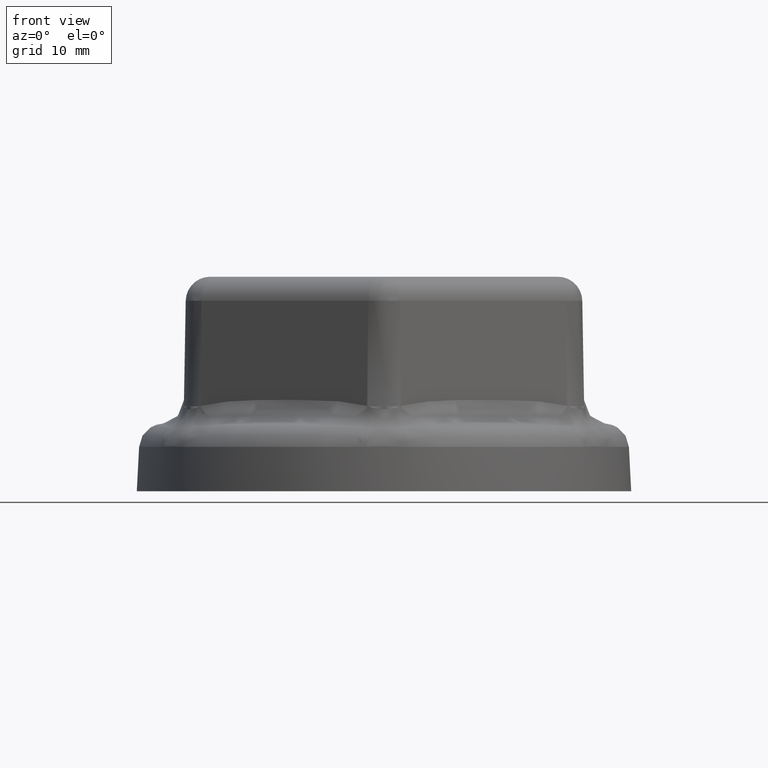
[diagram: clean part render]
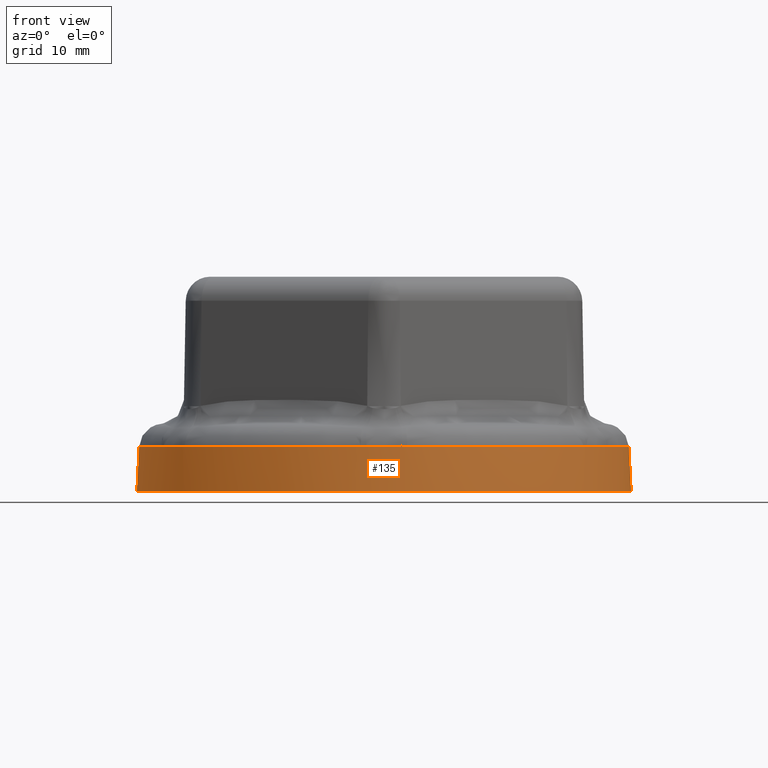
[diagram: same view with one face highlighted and labeled with its STEP entity id]
A machine part, front view. The second image highlights one B-rep face of the part: STEP entity #135.
In plain terms, the highlighted conical surface has half-angle 3 deg.
Its self-contained STEP definition (entity closure, byte-faithful):
#135 = ADVANCED_FACE( '', ( #328, #329 ), #330, .T. );
#328 = FACE_BOUND( '', #2324, .T. );
#329 = FACE_OUTER_BOUND( '', #2325, .T. );
#330 = CONICAL_SURFACE( '', #2326, 25.2305942288454, 0.0523598775598299 );
#2324 = EDGE_LOOP( '', ( #5870, #5871, #5872, #5873, #5874, #5875, #5876, #5877, #5878, #5879, #5880, #5881, #5882, #5883, #5884, #5885, #5886, #5887, #5888, #5889, #5890, #5891, #5892, #5893 ) );
#2325 = EDGE_LOOP( '', ( #5894 ) );
#2326 = AXIS2_PLACEMENT_3D( '', #5895, #5896, #5897 );
#5870 = ORIENTED_EDGE( '', *, *, #6428, .T. );
#5871 = ORIENTED_EDGE( '', *, *, #6429, .T. );
#5872 = ORIENTED_EDGE( '', *, *, #6430, .T. );
#5873 = ORIENTED_EDGE( '', *, *, #6431, .T. );
#5874 = ORIENTED_EDGE( '', *, *, #6432, .T. );
#5875 = ORIENTED_EDGE( '', *, *, #6433, .T. );
#5876 = ORIENTED_EDGE( '', *, *, #6434, .T. );
#5877 = ORIENTED_EDGE( '', *, *, #6435, .T. );
#5878 = ORIENTED_EDGE( '', *, *, #6436, .T. );
#5879 = ORIENTED_EDGE( '', *, *, #6437, .T. );
#5880 = ORIENTED_EDGE( '', *, *, #6427, .T. );
#5881 = ORIENTED_EDGE( '', *, *, #6417, .T. );
#5882 = ORIENTED_EDGE( '', *, *, #6413, .T. );
#5883 = ORIENTED_EDGE( '', *, *, #6424, .T. );
#5884 = ORIENTED_EDGE( '', *, *, #6438, .T. );
#5885 = ORIENTED_EDGE( '', *, *, #6439, .T. );
#5886 = ORIENTED_EDGE( '', *, *, #6440, .T. );
#5887 = ORIENTED_EDGE( '', *, *, #6441, .T. );
#5888 = ORIENTED_EDGE( '', *, *, #6442, .T. );
#5889 = ORIENTED_EDGE( '', *, *, #6443, .T. );
#5890 = ORIENTED_EDGE( '', *, *, #6444, .T. );
#5891 = ORIENTED_EDGE( '', *, *, #6445, .T. );
#5892 = ORIENTED_EDGE( '', *, *, #6446, .T. );
#5893 = ORIENTED_EDGE( '', *, *, #6447, .T. );
#5894 = ORIENTED_EDGE( '', *, *, #6448, .T. );
#5895 = CARTESIAN_POINT( '', ( 2.08166817117217E-014, 0.000000000000000, 4.33680868994202E-015 ) );
#5896 = DIRECTION( '', ( 0.000000000000000, 0.000000000000000, -1.00000000000000 ) );
#5897 = DIRECTION( '', ( 1.00000000000000, 0.000000000000000, 0.000000000000000 ) );
#6413 = EDGE_CURVE( '', #6824, #6826, #6828, .T. );
#6417 = EDGE_CURVE( '', #6832, #6824, #6834, .T. );
#6424 = EDGE_CURVE( '', #6826, #6844, #6846, .T. );
#6427 = EDGE_CURVE( '', #6848, #6832, #6851, .T. );
#6428 = EDGE_CURVE( '', #6852, #6853, #6854, .T. );
#6429 = EDGE_CURVE( '', #6853, #6855, #6856, .T. );
#6430 = EDGE_CURVE( '', #6855, #6857, #6858, .T. );
#6431 = EDGE_CURVE( '', #6857, #6859, #6860, .T. );
#6432 = EDGE_CURVE( '', #6859, #6861, #6862, .T. );
#6433 = EDGE_CURVE( '', #6861, #6863, #6864, .T. );
#6434 = EDGE_CURVE( '', #6863, #6865, #6866, .T. );
#6435 = EDGE_CURVE( '', #6865, #6867, #6868, .T. );
#6436 = EDGE_CURVE( '', #6867, #6869, #6870, .T. );
#6437 = EDGE_CURVE( '', #6869, #6848, #6871, .T. );
#6438 = EDGE_CURVE( '', #6844, #6872, #6873, .T. );
#6439 = EDGE_CURVE( '', #6872, #6874, #6875, .T. );
#6440 = EDGE_CURVE( '', #6874, #6876, #6877, .T. );
#6441 = EDGE_CURVE( '', #6876, #6878, #6879, .T. );
#6442 = EDGE_CURVE( '', #6878, #6880, #6881, .T. );
#6443 = EDGE_CURVE( '', #6880, #6882, #6883, .T. );
#6444 = EDGE_CURVE( '', #6882, #6884, #6885, .T. );
#6445 = EDGE_CURVE( '', #6884, #6886, #6887, .T. );
#6446 = EDGE_CURVE( '', #6886, #6888, #6889, .T. );
#6447 = EDGE_CURVE( '', #6888, #6852, #6890, .T. );
#6448 = EDGE_CURVE( '', #6891, #6891, #6892, .T. );
#6824 = VERTEX_POINT( '', #8099 );
#6826 = VERTEX_POINT( '', #8101 );
#6828 = CIRCLE( '', #8103, 24.9931429718916 );
#6832 = VERTEX_POINT( '', #8109 );
#6834 = B_SPLINE_CURVE_WITH_KNOTS( '', 3, ( #8111, #8112, #8113, #8114 ), .UNSPECIFIED., .F., .F., ( 4, 4 ), ( 0.000000000000000, 0.000557651926171132 ), .UNSPECIFIED. );
#6844 = VERTEX_POINT( '', #8205 );
#6846 = B_SPLINE_CURVE_WITH_KNOTS( '', 3, ( #8207, #8208, #8209, #8210 ), .UNSPECIFIED., .F., .F., ( 4, 4 ), ( 0.000000000000000, 0.000557651925402501 ), .UNSPECIFIED. );
#6848 = VERTEX_POINT( '', #8212 );
#6851 = B_SPLINE_CURVE_WITH_KNOTS( '', 3, ( #8236, #8237, #8238, #8239, #8240, #8241, #8242, #8243, #8244, #8245, #8246, #8247, #8248, #8249, #8250, #8251, #8252, #8253, #8254 ), .UNSPECIFIED., .F., .F., ( 4, 2, 2, 1, 1, 1, 1, 1, 1, 1, 2, 2, 4 ), ( 0.000000000000000, 0.000450203736993104, 0.000900407473986208, 0.00112550934248276, 0.00135061121097931, 0.00157571307947586, 0.00180081494797241, 0.00202591681646897, 0.00225101868496552, 0.00247612055346207, 0.00270122242195862, 0.00315142615895172, 0.00360162989594483 ), .UNSPECIFIED. );
#6852 = VERTEX_POINT( '', #8255 );
#6853 = VERTEX_POINT( '', #8256 );
#6854 = CIRCLE( '', #8257, 24.9931429718916 );
#6855 = VERTEX_POINT( '', #8258 );
#6856 = B_SPLINE_CURVE_WITH_KNOTS( '', 3, ( #8259, #8260, #8261, #8262 ), .UNSPECIFIED., .F., .F., ( 4, 4 ), ( 0.000000000000000, 0.000557651925402508 ), .UNSPECIFIED. );
#6857 = VERTEX_POINT( '', #8263 );
#6858 = B_SPLINE_CURVE_WITH_KNOTS( '', 3, ( #8264, #8265, #8266, #8267, #8268, #8269, #8270, #8271, #8272, #8273, #8274, #8275, #8276, #8277, #8278, #8279, #8280, #8281, #8282 ), .UNSPECIFIED., .F., .F., ( 4, 2, 2, 1, 1, 1, 1, 1, 1, 1, 2, 2, 4 ), ( 0.000000000000000, 0.000450203736993181, 0.000900407473986361, 0.00112550934248295, 0.00135061121097954, 0.00157571307947613, 0.00180081494797272, 0.00202591681646931, 0.00225101868496590, 0.00247612055346249, 0.00270122242195908, 0.00315142615895226, 0.00360162989594544 ), .UNSPECIFIED. );
#6859 = VERTEX_POINT( '', #8283 );
#6860 = B_SPLINE_CURVE_WITH_KNOTS( '', 3, ( #8284, #8285, #8286, #8287 ), .UNSPECIFIED., .F., .F., ( 4, 4 ), ( 0.000000000000000, 0.000557651926171078 ), .UNSPECIFIED. );
#6861 = VERTEX_POINT( '', #8288 );
#6862 = CIRCLE( '', #8289, 24.9931429718916 );
#6863 = VERTEX_POINT( '', #8290 );
#6864 = B_SPLINE_CURVE_WITH_KNOTS( '', 3, ( #8291, #8292, #8293, #8294 ), .UNSPECIFIED., .F., .F., ( 4, 4 ), ( 0.000000000000000, 0.000557651925400999 ), .UNSPECIFIED. );
#6865 = VERTEX_POINT( '', #8295 );
#6866 = B_SPLINE_CURVE_WITH_KNOTS( '', 3, ( #8296, #8297, #8298, #8299, #8300, #8301, #8302, #8303, #8304, #8305, #8306, #8307, #8308, #8309, #8310, #8311, #8312, #8313, #8314 ), .UNSPECIFIED., .F., .F., ( 4, 2, 2, 1, 1, 1, 1, 1, 1, 1, 2, 2, 4 ), ( 0.000000000000000, 0.000450203736993432, 0.000900407473986863, 0.00112550934248358, 0.00135061121098029, 0.00157571307947701, 0.00180081494797373, 0.00202591681647044, 0.00225101868496716, 0.00247612055346387, 0.00270122242196059, 0.00315142615895402, 0.00360162989594746 ), .UNSPECIFIED. );
#6867 = VERTEX_POINT( '', #8315 );
#6868 = B_SPLINE_CURVE_WITH_KNOTS( '', 3, ( #8316, #8317, #8318, #8319 ), .UNSPECIFIED., .F., .F., ( 4, 4 ), ( 0.000000000000000, 0.000557651926170568 ), .UNSPECIFIED. );
#6869 = VERTEX_POINT( '', #8320 );
#6870 = CIRCLE( '', #8321, 24.9931429718916 );
#6871 = B_SPLINE_CURVE_WITH_KNOTS( '', 3, ( #8322, #8323, #8324, #8325 ), .UNSPECIFIED., .F., .F., ( 4, 4 ), ( 0.000000000000000, 0.000557651925403156 ), .UNSPECIFIED. );
#6872 = VERTEX_POINT( '', #8326 );
#6873 = B_SPLINE_CURVE_WITH_KNOTS( '', 3, ( #8327, #8328, #8329, #8330, #8331, #8332, #8333, #8334, #8335, #8336, #8337, #8338, #8339, #8340, #8341, #8342, #8343, #8344, #8345 ), .UNSPECIFIED., .F., .F., ( 4, 2, 2, 1, 1, 1, 1, 1, 1, 1, 2, 2, 4 ), ( 0.000000000000000, 0.000450203736993256, 0.000900407473986511, 0.00112550934248314, 0.00135061121097977, 0.00157571307947639, 0.00180081494797302, 0.00202591681646965, 0.00225101868496628, 0.00247612055346290, 0.00270122242195953, 0.00315142615895279, 0.00360162989594605 ), .UNSPECIFIED. );
#6874 = VERTEX_POINT( '', #8346 );
#6875 = B_SPLINE_CURVE_WITH_KNOTS( '', 3, ( #8347, #8348, #8349, #8350 ), .UNSPECIFIED., .F., .F., ( 4, 4 ), ( 0.000000000000000, 0.000557651926170639 ), .UNSPECIFIED. );
#6876 = VERTEX_POINT( '', #8351 );
#6877 = CIRCLE( '', #8352, 24.9931429718916 );
#6878 = VERTEX_POINT( '', #8353 );
#6879 = B_SPLINE_CURVE_WITH_KNOTS( '', 3, ( #8354, #8355, #8356, #8357 ), .UNSPECIFIED., .F., .F., ( 4, 4 ), ( 0.000000000000000, 0.000557651925404800 ), .UNSPECIFIED. );
#6880 = VERTEX_POINT( '', #8358 );
#6881 = B_SPLINE_CURVE_WITH_KNOTS( '', 3, ( #8359, #8360, #8361, #8362, #8363, #8364, #8365, #8366, #8367, #8368, #8369, #8370, #8371, #8372, #8373, #8374, #8375, #8376, #8377 ), .UNSPECIFIED., .F., .F., ( 4, 2, 2, 1, 1, 1, 1, 1, 1, 1, 2, 2, 4 ), ( 0.000000000000000, 0.000450203736992955, 0.000900407473985910, 0.00112550934248238, 0.00135061121097885, 0.00157571307947533, 0.00180081494797180, 0.00202591681646827, 0.00225101868496475, 0.00247612055346122, 0.00270122242195769, 0.00315142615895065, 0.00360162989594360 ), .UNSPECIFIED. );
#6882 = VERTEX_POINT( '', #8378 );
#6883 = B_SPLINE_CURVE_WITH_KNOTS( '', 3, ( #8379, #8380, #8381, #8382 ), .UNSPECIFIED., .F., .F., ( 4, 4 ), ( 0.000000000000000, 0.000557651926170761 ), .UNSPECIFIED. );
#6884 = VERTEX_POINT( '', #8383 );
#6885 = CIRCLE( '', #8384, 24.9931429718916 );
#6886 = VERTEX_POINT( '', #8385 );
#6887 = B_SPLINE_CURVE_WITH_KNOTS( '', 3, ( #8386, #8387, #8388, #8389 ), .UNSPECIFIED., .F., .F., ( 4, 4 ), ( 0.000000000000000, 0.000557651925403171 ), .UNSPECIFIED. );
#6888 = VERTEX_POINT( '', #8390 );
#6889 = B_SPLINE_CURVE_WITH_KNOTS( '', 3, ( #8391, #8392, #8393, #8394, #8395, #8396, #8397, #8398, #8399, #8400, #8401, #8402, #8403, #8404, #8405, #8406, #8407, #8408, #8409 ), .UNSPECIFIED., .F., .F., ( 4, 2, 2, 1, 1, 1, 1, 1, 1, 1, 2, 2, 4 ), ( 0.000000000000000, 0.000450203736993081, 0.000900407473986162, 0.00112550934248270, 0.00135061121097924, 0.00157571307947578, 0.00180081494797232, 0.00202591681646887, 0.00225101868496541, 0.00247612055346195, 0.00270122242195849, 0.00315142615895157, 0.00360162989594465 ), .UNSPECIFIED. );
#6890 = B_SPLINE_CURVE_WITH_KNOTS( '', 3, ( #8410, #8411, #8412, #8413 ), .UNSPECIFIED., .F., .F., ( 4, 4 ), ( 0.000000000000000, 0.000557651926171261 ), .UNSPECIFIED. );
#6891 = VERTEX_POINT( '', #8414 );
#6892 = CIRCLE( '', #8415, 25.2305942288453 );
#8099 = CARTESIAN_POINT( '', ( -2.35649876863653, -24.8818027716407, 4.53083989060736 ) );
#8101 = CARTESIAN_POINT( '', ( -20.3700239078766, -14.4816891834464, 4.53083989060736 ) );
#8103 = AXIS2_PLACEMENT_3D( '', #9653, #9654, #9655 );
#8109 = CARTESIAN_POINT( '', ( -1.80081494758952, -24.9276983127087, 4.54004646972461 ) );
#8111 = CARTESIAN_POINT( '', ( -1.80081494758952, -24.9276983127087, 4.54004646972461 ) );
#8112 = CARTESIAN_POINT( '', ( -1.98617420299657, -24.9146390043897, 4.53374080637713 ) );
#8113 = CARTESIAN_POINT( '', ( -2.17140427813457, -24.8993326485131, 4.53083989060736 ) );
#8114 = CARTESIAN_POINT( '', ( -2.35649876863653, -24.8818027716407, 4.53083989060736 ) );
#8205 = CARTESIAN_POINT( '', ( -20.6876125224555, -14.0234006491184, 4.54004646969853 ) );
#8207 = CARTESIAN_POINT( '', ( -20.3700239078766, -14.4816891834464, 4.53083989060736 ) );
#8208 = CARTESIAN_POINT( '', ( -20.4777524716758, -14.3301575912161, 4.53083989060736 ) );
#8209 = CARTESIAN_POINT( '', ( -20.5836232026765, -14.1773968179569, 4.53374080639008 ) );
#8210 = CARTESIAN_POINT( '', ( -20.6876125229954, -14.0234006483188, 4.54004646973128 ) );
#8212 = CARTESIAN_POINT( '', ( 1.80081494835531, -24.9276983126548, 4.54004646969856 ) );
#8236 = CARTESIAN_POINT( '', ( 1.80081494835531, -24.9276983126548, 4.54004646969856 ) );
#8237 = CARTESIAN_POINT( '', ( 1.65074703602422, -24.9382712032986, 4.54515157072938 ) );
#8238 = CARTESIAN_POINT( '', ( 1.50067912369314, -24.9473971659078, 4.55187841434862 ) );
#8239 = CARTESIAN_POINT( '', ( 1.20054329903098, -24.9629031242173, 4.56593695916369 ) );
#8240 = CARTESIAN_POINT( '', ( 1.05047538669991, -24.9692838077094, 4.57325521045316 ) );
#8241 = CARTESIAN_POINT( '', ( 0.825373518203308, -24.9768939411550, 4.58289497854651 ) );
#8242 = CARTESIAN_POINT( '', ( 0.675305605872244, -24.9813133013563, 4.58888294348387 ) );
#8243 = CARTESIAN_POINT( '', ( 0.450203737375661, -24.9860188051682, 4.59584152262590 ) );
#8244 = CARTESIAN_POINT( '', ( 0.225101868879089, -24.9888299680380, 4.60024025219212 ) );
#8245 = CARTESIAN_POINT( '', ( 3.82531219157364E-010, -24.9897649556353, 4.60174460618100 ) );
#8246 = CARTESIAN_POINT( '', ( -0.225101868114014, -24.9888299680443, 4.60024025220223 ) );
#8247 = CARTESIAN_POINT( '', ( -0.450203736610546, -24.9860188195892, 4.59584124181977 ) );
#8248 = CARTESIAN_POINT( '', ( -0.675305605107066, -24.9813133211850, 4.58888255741361 ) );
#8249 = CARTESIAN_POINT( '', ( -0.825373517438072, -24.9768939411786, 4.58289497857851 ) );
#8250 = CARTESIAN_POINT( '', ( -1.05047538593458, -24.9692838077396, 4.57325521048955 ) );
#8251 = CARTESIAN_POINT( '', ( -1.20054329826557, -24.9629031242521, 4.56593695920113 ) );
#8252 = CARTESIAN_POINT( '', ( -1.50067912292755, -24.9473971659520, 4.55187841438371 ) );
#8253 = CARTESIAN_POINT( '', ( -1.65074703622609, -24.9382712032856, 4.54515157072115 ) );
#8254 = CARTESIAN_POINT( '', ( -1.80081494855707, -24.9276983126406, 4.54004646969169 ) );
#8255 = CARTESIAN_POINT( '', ( 2.35649876863651, 24.8818027716407, 4.53083989060736 ) );
#8256 = CARTESIAN_POINT( '', ( 20.3700239078767, 14.4816891834463, 4.53083989060736 ) );
#8257 = AXIS2_PLACEMENT_3D( '', #9668, #9669, #9670 );
#8258 = CARTESIAN_POINT( '', ( 20.6876125224555, 14.0234006491184, 4.54004646969853 ) );
#8259 = CARTESIAN_POINT( '', ( 20.3700239078767, 14.4816891834463, 4.53083989060736 ) );
#8260 = CARTESIAN_POINT( '', ( 20.4777524716759, 14.3301575912161, 4.53083989060736 ) );
#8261 = CARTESIAN_POINT( '', ( 20.5836232026765, 14.1773968179569, 4.53374080639008 ) );
#8262 = CARTESIAN_POINT( '', ( 20.6876125229955, 14.0234006483188, 4.54004646973127 ) );
#8263 = CARTESIAN_POINT( '', ( 22.4884274704750, 10.9042976642271, 4.54004646972461 ) );
#8264 = CARTESIAN_POINT( '', ( 20.6876125224555, 14.0234006491184, 4.54004646969853 ) );
#8265 = CARTESIAN_POINT( '', ( 20.7718028705101, 13.8987244700686, 4.54515157072933 ) );
#8266 = CARTESIAN_POINT( '', ( 20.8547401421292, 13.7733248270016, 4.55187841434853 ) );
#8267 = CARTESIAN_POINT( '', ( 21.0182366082663, 13.5211525574131, 4.56593695916353 ) );
#8268 = CARTESIAN_POINT( '', ( 21.0987963984296, 13.3943802747875, 4.57325521045298 ) );
#8269 = CARTESIAN_POINT( '', ( 21.2179379015680, 13.2032414049529, 4.58289497854631 ) );
#8270 = CARTESIAN_POINT( '', ( 21.2967991359363, 13.0754884606819, 4.58888294348357 ) );
#8271 = CARTESIAN_POINT( '', ( 21.4134251560234, 12.8828972760305, 4.59584152262571 ) );
#8272 = CARTESIAN_POINT( '', ( 21.5284106221814, 12.6893589171265, 4.60024039961025 ) );
#8273 = CARTESIAN_POINT( '', ( 21.6417712859908, 12.4948824781492, 4.60174460618086 ) );
#8274 = CARTESIAN_POINT( '', ( 21.7535124972332, 12.2994710477963, 4.60024025220213 ) );
#8275 = CARTESIAN_POINT( '', ( 21.8636289055055, 12.1031215370114, 4.59584124181968 ) );
#8276 = CARTESIAN_POINT( '', ( 21.9721047585983, 11.9058248512519, 4.58888255741354 ) );
#8277 = CARTESIAN_POINT( '', ( 22.0433114194093, 11.7736525368772, 4.58289497857844 ) );
#8278 = CARTESIAN_POINT( '', ( 22.1492717847732, 11.5749035336003, 4.57325521048950 ) );
#8279 = CARTESIAN_POINT( '', ( 22.2187799069450, 11.4417505674850, 4.56593695920108 ) );
#8280 = CARTESIAN_POINT( '', ( 22.3554192654781, 11.1740723395918, 4.55187841438368 ) );
#8281 = CARTESIAN_POINT( '', ( 22.4225499066245, 11.0395467330489, 4.54515157072113 ) );
#8282 = CARTESIAN_POINT( '', ( 22.4884274708999, 10.9042976633549, 4.54004646969168 ) );
#8283 = CARTESIAN_POINT( '', ( 22.7265226765132, 10.4001135881944, 4.53083989060736 ) );
#8284 = CARTESIAN_POINT( '', ( 22.4884274704750, 10.9042976642271, 4.54004646972461 ) );
#8285 = CARTESIAN_POINT( '', ( 22.5697974054184, 10.7372421860585, 4.53374080637713 ) );
#8286 = CARTESIAN_POINT( '', ( 22.6491567499589, 10.5691750575058, 4.53083989060736 ) );
#8287 = CARTESIAN_POINT( '', ( 22.7265226765132, 10.4001135881944, 4.53083989060736 ) );
#8288 = CARTESIAN_POINT( '', ( 22.7265226765132, -10.4001135881944, 4.53083989060736 ) );
#8289 = AXIS2_PLACEMENT_3D( '', #9671, #9672, #9673 );
#8290 = CARTESIAN_POINT( '', ( 22.4884274708121, -10.9042976635350, 4.54004646969848 ) );
#8291 = CARTESIAN_POINT( '', ( 22.7265226765132, -10.4001135881944, 4.53083989060736 ) );
#8292 = CARTESIAN_POINT( '', ( 22.6491567500657, -10.5691750572724, 4.53083989060736 ) );
#8293 = CARTESIAN_POINT( '', ( 22.5697974052214, -10.7372421864666, 4.53374080639010 ) );
#8294 = CARTESIAN_POINT( '', ( 22.4884274703890, -10.9042976644038, 4.54004646973127 ) );
#8295 = CARTESIAN_POINT( '', ( 20.6876125228852, -14.0234006484821, 4.54004646972459 ) );
#8296 = CARTESIAN_POINT( '', ( 22.4884274708121, -10.9042976635350, 4.54004646969848 ) );
#8297 = CARTESIAN_POINT( '', ( 22.4225499065355, -11.0395467332287, 4.54515157072921 ) );
#8298 = CARTESIAN_POINT( '', ( 22.3554192658235, -11.1740723389050, 4.55187841434832 ) );
#8299 = CARTESIAN_POINT( '', ( 22.2187799072984, -11.4417505668032, 4.56593695916317 ) );
#8300 = CARTESIAN_POINT( '', ( 22.1492717851305, -11.5749035329209, 4.57325521045256 ) );
#8301 = CARTESIAN_POINT( '', ( 22.0433114197722, -11.7736525362013, 4.58289497854585 ) );
#8302 = CARTESIAN_POINT( '', ( 21.9721047418094, -11.9058248406736, 4.58888294348319 ) );
#8303 = CARTESIAN_POINT( '', ( 21.8636289058776, -12.1031215363412, 4.59584124179957 ) );
#8304 = CARTESIAN_POINT( '', ( 21.7535124976108, -12.2994710471295, 4.60024025219144 ) );
#8305 = CARTESIAN_POINT( '', ( 21.6417712863739, -12.4948824774857, 4.60174460618033 ) );
#8306 = CARTESIAN_POINT( '', ( 21.5284106225700, -12.6893589164663, 4.60024039962022 ) );
#8307 = CARTESIAN_POINT( '', ( 21.4134251688953, -12.8828972825776, 4.59584124181907 ) );
#8308 = CARTESIAN_POINT( '', ( 21.2967991534915, -13.0754884699330, 4.58888255741292 ) );
#8309 = CARTESIAN_POINT( '', ( 21.2179379019714, -13.2032414043015, 4.58289497857784 ) );
#8310 = CARTESIAN_POINT( '', ( 21.0987963988387, -13.3943802741394, 4.57325521048896 ) );
#8311 = CARTESIAN_POINT( '', ( 21.0182366086795, -13.5211525567673, 4.56593695920063 ) );
#8312 = CARTESIAN_POINT( '', ( 20.8547401425504, -13.7733248263605, 4.55187841438344 ) );
#8313 = CARTESIAN_POINT( '', ( 20.7718028703967, -13.8987244702388, 4.54515157072094 ) );
#8314 = CARTESIAN_POINT( '', ( 20.6876125223411, -14.0234006492879, 4.54004646969159 ) );
#8315 = CARTESIAN_POINT( '', ( 20.3700239078767, -14.4816891834463, 4.53083989060736 ) );
#8316 = CARTESIAN_POINT( '', ( 20.6876125228852, -14.0234006484821, 4.54004646972459 ) );
#8317 = CARTESIAN_POINT( '', ( 20.5836232024217, -14.1773968183315, 4.53374080637712 ) );
#8318 = CARTESIAN_POINT( '', ( 20.4777524718243, -14.3301575910074, 4.53083989060736 ) );
#8319 = CARTESIAN_POINT( '', ( 20.3700239078767, -14.4816891834463, 4.53083989060736 ) );
#8320 = CARTESIAN_POINT( '', ( 2.35649876863651, -24.8818027716407, 4.53083989060736 ) );
#8321 = AXIS2_PLACEMENT_3D( '', #9674, #9675, #9676 );
#8322 = CARTESIAN_POINT( '', ( 2.35649876863651, -24.8818027716407, 4.53083989060736 ) );
#8323 = CARTESIAN_POINT( '', ( 2.17140427838943, -24.8993326484889, 4.53083989060736 ) );
#8324 = CARTESIAN_POINT( '', ( 1.98617420254536, -24.9146390044231, 4.53374080639007 ) );
#8325 = CARTESIAN_POINT( '', ( 1.80081494739351, -24.9276983127225, 4.54004646973127 ) );
#8326 = CARTESIAN_POINT( '', ( -22.4884274704752, -10.9042976642266, 4.54004646972459 ) );
#8327 = CARTESIAN_POINT( '', ( -20.6876125224555, -14.0234006491184, 4.54004646969853 ) );
#8328 = CARTESIAN_POINT( '', ( -20.7718028705100, -13.8987244700687, 4.54515157072932 ) );
#8329 = CARTESIAN_POINT( '', ( -20.8547401421291, -13.7733248270016, 4.55187841434854 ) );
#8330 = CARTESIAN_POINT( '', ( -21.0182366082663, -13.5211525574131, 4.56593695916354 ) );
#8331 = CARTESIAN_POINT( '', ( -21.0987963984295, -13.3943802747875, 4.57325521045299 ) );
#8332 = CARTESIAN_POINT( '', ( -21.2179379015680, -13.2032414049528, 4.58289497854630 ) );
#8333 = CARTESIAN_POINT( '', ( -21.2967991359364, -13.0754884606818, 4.58888294348365 ) );
#8334 = CARTESIAN_POINT( '', ( -21.4134251560235, -12.8828972760304, 4.59584152262562 ) );
#8335 = CARTESIAN_POINT( '', ( -21.5284106221815, -12.6893589171263, 4.60024039961004 ) );
#8336 = CARTESIAN_POINT( '', ( -21.6417712859909, -12.4948824781490, 4.60174460618050 ) );
#8337 = CARTESIAN_POINT( '', ( -21.7535124972333, -12.2994710477961, 4.60024025220162 ) );
#8338 = CARTESIAN_POINT( '', ( -21.8636289055056, -12.1031215370111, 4.59584124181905 ) );
#8339 = CARTESIAN_POINT( '', ( -21.9721047585985, -11.9058248512517, 4.58888255741284 ) );
#8340 = CARTESIAN_POINT( '', ( -22.0433114194095, -11.7736525368769, 4.58289497857775 ) );
#8341 = CARTESIAN_POINT( '', ( -22.1492717847734, -11.5749035336000, 4.57325521048887 ) );
#8342 = CARTESIAN_POINT( '', ( -22.2187799069452, -11.4417505674846, 4.56593695920055 ) );
#8343 = CARTESIAN_POINT( '', ( -22.3554192654783, -11.1740723395914, 4.55187841438341 ) );
#8344 = CARTESIAN_POINT( '', ( -22.4225499066257, -11.0395467330464, 4.54515157072092 ) );
#8345 = CARTESIAN_POINT( '', ( -22.4884274709011, -10.9042976633523, 4.54004646969159 ) );
#8346 = CARTESIAN_POINT( '', ( -22.7265226765132, -10.4001135881943, 4.53083989060736 ) );
#8347 = CARTESIAN_POINT( '', ( -22.4884274704752, -10.9042976642266, 4.54004646972459 ) );
#8348 = CARTESIAN_POINT( '', ( -22.5697974054185, -10.7372421860582, 4.53374080637712 ) );
#8349 = CARTESIAN_POINT( '', ( -22.6491567499590, -10.5691750575056, 4.53083989060736 ) );
#8350 = CARTESIAN_POINT( '', ( -22.7265226765132, -10.4001135881944, 4.53083989060736 ) );
#8351 = CARTESIAN_POINT( '', ( -22.7265226765132, 10.4001135881943, 4.53083989060736 ) );
#8352 = AXIS2_PLACEMENT_3D( '', #9677, #9678, #9679 );
#8353 = CARTESIAN_POINT( '', ( -22.4884274708105, 10.9042976635384, 4.54004646969861 ) );
#8354 = CARTESIAN_POINT( '', ( -22.7265226765132, 10.4001135881943, 4.53083989060736 ) );
#8355 = CARTESIAN_POINT( '', ( -22.6491567500652, 10.5691750572735, 4.53083989060736 ) );
#8356 = CARTESIAN_POINT( '', ( -22.5697974052219, 10.7372421864655, 4.53374080639005 ) );
#8357 = CARTESIAN_POINT( '', ( -22.4884274703889, 10.9042976644037, 4.54004646973128 ) );
#8358 = CARTESIAN_POINT( '', ( -20.6876125228853, 14.0234006484819, 4.54004646972459 ) );
#8359 = CARTESIAN_POINT( '', ( -22.4884274708105, 10.9042976635384, 4.54004646969861 ) );
#8360 = CARTESIAN_POINT( '', ( -22.4225499065339, 11.0395467332318, 4.54515157072951 ) );
#8361 = CARTESIAN_POINT( '', ( -22.3554192658219, 11.1740723389080, 4.55187841434888 ) );
#8362 = CARTESIAN_POINT( '', ( -22.2187799072969, 11.4417505668058, 4.56593695916414 ) );
#8363 = CARTESIAN_POINT( '', ( -22.1492717851290, 11.5749035329234, 4.57325521045369 ) );
#8364 = CARTESIAN_POINT( '', ( -22.0433114197709, 11.7736525362036, 4.58289497854705 ) );
#8365 = CARTESIAN_POINT( '', ( -21.9721047589637, 11.9058248505806, 4.58888255738573 ) );
#8366 = CARTESIAN_POINT( '', ( -21.8636288933987, 12.1031215291391, 4.59584152262630 ) );
#8367 = CARTESIAN_POINT( '', ( -21.7535124910601, 12.2994710433498, 4.60024039961060 ) );
#8368 = CARTESIAN_POINT( '', ( -21.6417712863730, 12.4948824774872, 4.60174460618092 ) );
#8369 = CARTESIAN_POINT( '', ( -21.5284106291188, 12.6893589202490, 4.60024025220189 ) );
#8370 = CARTESIAN_POINT( '', ( -21.4134251688946, 12.8828972825787, 4.59584124181923 ) );
#8371 = CARTESIAN_POINT( '', ( -21.2967991534909, 13.0754884699339, 4.58888255741294 ) );
#8372 = CARTESIAN_POINT( '', ( -21.2179379019709, 13.2032414043022, 4.58289497857783 ) );
#8373 = CARTESIAN_POINT( '', ( -21.0987963988384, 13.3943802741400, 4.57325521048892 ) );
#8374 = CARTESIAN_POINT( '', ( -21.0182366086792, 13.5211525567677, 4.56593695920061 ) );
#8375 = CARTESIAN_POINT( '', ( -20.8547401425503, 13.7733248263606, 4.55187841438344 ) );
#8376 = CARTESIAN_POINT( '', ( -20.7718028703968, 13.8987244702386, 4.54515157072096 ) );
#8377 = CARTESIAN_POINT( '', ( -20.6876125223412, 14.0234006492876, 4.54004646969161 ) );
#8378 = CARTESIAN_POINT( '', ( -20.3700239078766, 14.4816891834463, 4.53083989060736 ) );
#8379 = CARTESIAN_POINT( '', ( -20.6876125228853, 14.0234006484819, 4.54004646972459 ) );
#8380 = CARTESIAN_POINT( '', ( -20.5836232024217, 14.1773968183314, 4.53374080637712 ) );
#8381 = CARTESIAN_POINT( '', ( -20.4777524718243, 14.3301575910074, 4.53083989060736 ) );
#8382 = CARTESIAN_POINT( '', ( -20.3700239078767, 14.4816891834463, 4.53083989060736 ) );
#8383 = CARTESIAN_POINT( '', ( -2.35649876863650, 24.8818027716407, 4.53083989060736 ) );
#8384 = AXIS2_PLACEMENT_3D( '', #9680, #9681, #9682 );
#8385 = CARTESIAN_POINT( '', ( -1.80081494835528, 24.9276983126548, 4.54004646969856 ) );
#8386 = CARTESIAN_POINT( '', ( -2.35649876863650, 24.8818027716407, 4.53083989060736 ) );
#8387 = CARTESIAN_POINT( '', ( -2.17140427838941, 24.8993326484889, 4.53083989060736 ) );
#8388 = CARTESIAN_POINT( '', ( -1.98617420254536, 24.9146390044231, 4.53374080639007 ) );
#8389 = CARTESIAN_POINT( '', ( -1.80081494739351, 24.9276983127225, 4.54004646973127 ) );
#8390 = CARTESIAN_POINT( '', ( 1.80081494758937, 24.9276983127087, 4.54004646972461 ) );
#8391 = CARTESIAN_POINT( '', ( -1.80081494835528, 24.9276983126548, 4.54004646969856 ) );
#8392 = CARTESIAN_POINT( '', ( -1.65074703602420, 24.9382712032986, 4.54515157072938 ) );
#8393 = CARTESIAN_POINT( '', ( -1.50067912369312, 24.9473971659078, 4.55187841434863 ) );
#8394 = CARTESIAN_POINT( '', ( -1.20054329903098, 24.9629031242173, 4.56593695916369 ) );
#8395 = CARTESIAN_POINT( '', ( -1.05047538669992, 24.9692838077094, 4.57325521045317 ) );
#8396 = CARTESIAN_POINT( '', ( -0.825373518203326, 24.9768939411550, 4.58289497854651 ) );
#8397 = CARTESIAN_POINT( '', ( -0.675305605872271, 24.9813133013563, 4.58888294348388 ) );
#8398 = CARTESIAN_POINT( '', ( -0.450203737375698, 24.9860188051683, 4.59584152262590 ) );
#8399 = CARTESIAN_POINT( '', ( -0.225101868879138, 24.9888299604751, 4.60024039961041 ) );
#8400 = CARTESIAN_POINT( '', ( -3.82591012907177E-010, 24.9897649556353, 4.60174460618099 ) );
#8401 = CARTESIAN_POINT( '', ( 0.225101868113943, 24.9888299680443, 4.60024025220222 ) );
#8402 = CARTESIAN_POINT( '', ( 0.450203736610464, 24.9860188195891, 4.59584124181977 ) );
#8403 = CARTESIAN_POINT( '', ( 0.675305605106972, 24.9813133211850, 4.58888255741361 ) );
#8404 = CARTESIAN_POINT( '', ( 0.825373517437971, 24.9768939411786, 4.58289497857850 ) );
#8405 = CARTESIAN_POINT( '', ( 1.05047538593446, 24.9692838077397, 4.57325521048955 ) );
#8406 = CARTESIAN_POINT( '', ( 1.20054329826545, 24.9629031242521, 4.56593695920113 ) );
#8407 = CARTESIAN_POINT( '', ( 1.50067912292742, 24.9473971659520, 4.55187841438371 ) );
#8408 = CARTESIAN_POINT( '', ( 1.65074703622599, 24.9382712032857, 4.54515157072116 ) );
#8409 = CARTESIAN_POINT( '', ( 1.80081494855697, 24.9276983126406, 4.54004646969169 ) );
#8410 = CARTESIAN_POINT( '', ( 1.80081494758937, 24.9276983127087, 4.54004646972461 ) );
#8411 = CARTESIAN_POINT( '', ( 1.98617420299647, 24.9146390043897, 4.53374080637713 ) );
#8412 = CARTESIAN_POINT( '', ( 2.17140427813451, 24.8993326485131, 4.53083989060736 ) );
#8413 = CARTESIAN_POINT( '', ( 2.35649876863651, 24.8818027716408, 4.53083989060736 ) );
#8414 = CARTESIAN_POINT( '', ( 25.2305942288454, 0.000000000000000, 3.46944695195362E-015 ) );
#8415 = AXIS2_PLACEMENT_3D( '', #9683, #9684, #9685 );
#9653 = CARTESIAN_POINT( '', ( 2.08166817117217E-014, 0.000000000000000, 4.53083989060736 ) );
#9654 = DIRECTION( '', ( 0.000000000000000, 0.000000000000000, -1.00000000000000 ) );
#9655 = DIRECTION( '', ( -1.00000000000000, 0.000000000000000, 0.000000000000000 ) );
#9668 = CARTESIAN_POINT( '', ( 2.08166817117217E-014, 0.000000000000000, 4.53083989060736 ) );
#9669 = DIRECTION( '', ( 0.000000000000000, 0.000000000000000, -1.00000000000000 ) );
#9670 = DIRECTION( '', ( -1.00000000000000, 0.000000000000000, 0.000000000000000 ) );
#9671 = CARTESIAN_POINT( '', ( 2.08166817117217E-014, 0.000000000000000, 4.53083989060736 ) );
#9672 = DIRECTION( '', ( 0.000000000000000, 0.000000000000000, -1.00000000000000 ) );
#9673 = DIRECTION( '', ( -1.00000000000000, 0.000000000000000, 0.000000000000000 ) );
#9674 = CARTESIAN_POINT( '', ( 2.08166817117217E-014, 0.000000000000000, 4.53083989060736 ) );
#9675 = DIRECTION( '', ( 0.000000000000000, 0.000000000000000, -1.00000000000000 ) );
#9676 = DIRECTION( '', ( -1.00000000000000, 0.000000000000000, 0.000000000000000 ) );
#9677 = CARTESIAN_POINT( '', ( 2.08166817117217E-014, 0.000000000000000, 4.53083989060736 ) );
#9678 = DIRECTION( '', ( 0.000000000000000, 0.000000000000000, -1.00000000000000 ) );
#9679 = DIRECTION( '', ( -1.00000000000000, 0.000000000000000, 0.000000000000000 ) );
#9680 = CARTESIAN_POINT( '', ( 2.08166817117217E-014, 0.000000000000000, 4.53083989060736 ) );
#9681 = DIRECTION( '', ( 0.000000000000000, 0.000000000000000, -1.00000000000000 ) );
#9682 = DIRECTION( '', ( -1.00000000000000, 0.000000000000000, 0.000000000000000 ) );
#9683 = CARTESIAN_POINT( '', ( 2.08166817117217E-014, 0.000000000000000, 3.46944695195362E-015 ) );
#9684 = DIRECTION( '', ( 0.000000000000000, 0.000000000000000, 1.00000000000000 ) );
#9685 = DIRECTION( '', ( 1.00000000000000, 0.000000000000000, 0.000000000000000 ) );